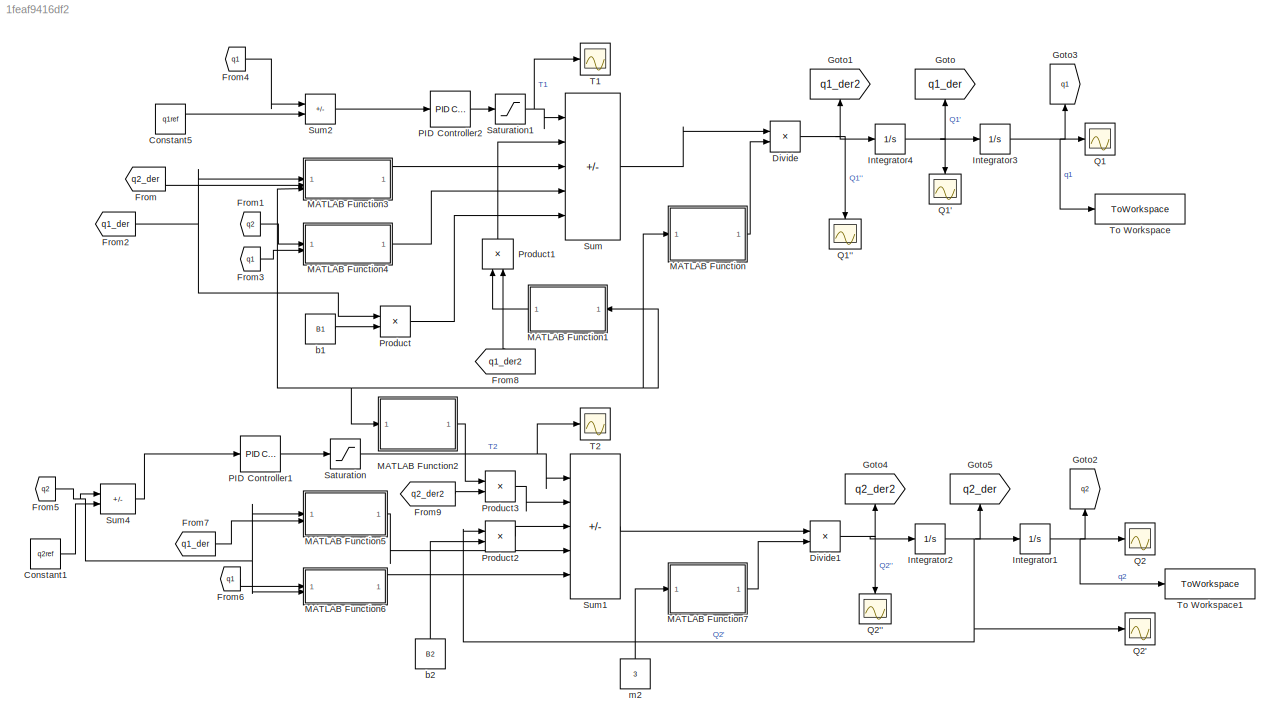
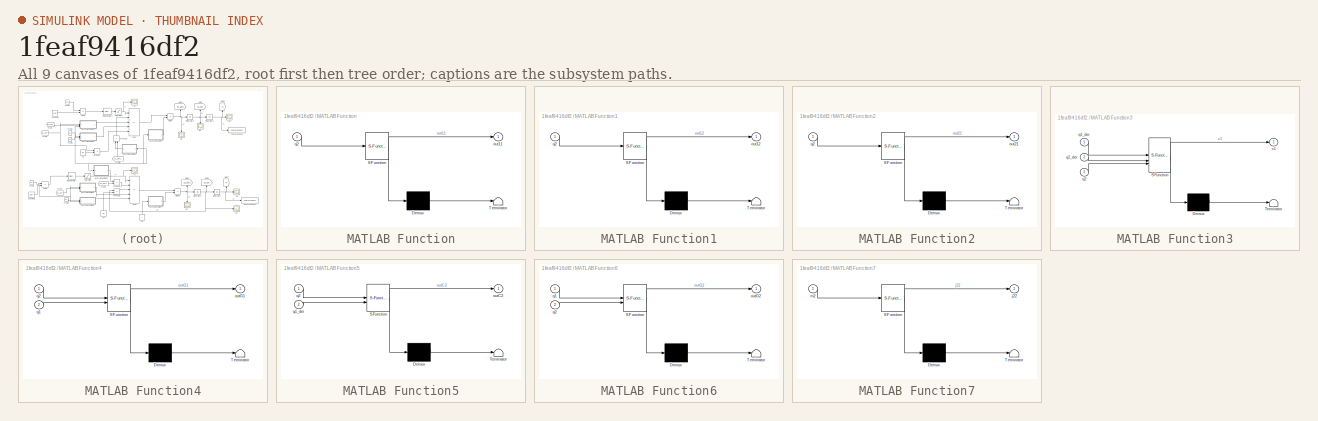
[diagram: thumbnail index - all 9 canvases of the model, root first then tree order]
MODEL slx_1feaf9416df2
KIND model
CONFIG AbsTol = auto
CONFIG EnableMultiTasking = off
CONFIG FixedStep = auto
CONFIG MaxStep = auto
CONFIG MinStep = auto
CONFIG RelTol = 1e-3
CONFIG SampleTimeConstraint = Unconstrained
CONFIG SolverName = VariableStepAuto
CONFIG StartTime = 0.0
CONFIG StopTime = 20
BLOCK [Constant] Constant1
  Value = q2ref
BLOCK [Constant] Constant5
  Value = q1ref
BLOCK [Product] Divide
  Inputs = */
BLOCK [Product] Divide1
  Inputs = */
BLOCK [From] From
  GotoTag = q2_der
BLOCK [From] From1
  GotoTag = q2
BLOCK [From] From2
  GotoTag = q1_der
BLOCK [From] From3
  GotoTag = q1
BLOCK [From] From4
  GotoTag = q1
BLOCK [From] From5
  GotoTag = q2
BLOCK [From] From6
  GotoTag = q1
BLOCK [From] From7
  GotoTag = q1_der
BLOCK [From] From8
  GotoTag = q1_der2
  NameLocation = right
BLOCK [From] From9
  GotoTag = q2_der2
BLOCK [Goto] Goto
  GotoTag = q1_der
  NameLocation = right
BLOCK [Goto] Goto1
  GotoTag = q1_der2
  NameLocation = right
BLOCK [Goto] Goto2
  GotoTag = q2
  NameLocation = right
BLOCK [Goto] Goto3
  GotoTag = q1
  NameLocation = right
BLOCK [Goto] Goto4
  GotoTag = q2_der2
  NameLocation = right
BLOCK [Goto] Goto5
  GotoTag = q2_der
  NameLocation = right
BLOCK [Integrator] Integrator1
  InitialCondition = 170
BLOCK [Integrator] Integrator2
BLOCK [Integrator] Integrator3
  InitialCondition = 170
BLOCK [Integrator] Integrator4
BLOCK [SubSystem] MATLAB Function
  ErrorFcn = Stateflow.Translate.translate
  PermitHierarchicalResolution = ExplicitOnly
  SFBlockType = MATLAB Function
  TreatAsAtomicUnit = on
BLOCK [Demux] MATLAB Function/ Demux 
  Outputs = 1
BLOCK [S-Function] MATLAB Function/ SFunction 
  EnableBusSupport = on
  FunctionName = sf_sfun
  PortCounts = [1 2]
  SFcnIsStateOwnerBlock = off
  SFunctionDeploymentMode = off
  Tag = Stateflow S-Function 2
BLOCK [Terminator] MATLAB Function/ Terminator 
BLOCK [Outport] MATLAB Function/out11
BLOCK [Inport] MATLAB Function/q2
BLOCK [SubSystem] MATLAB Function1
  ErrorFcn = Stateflow.Translate.translate
  NameLocation = top
  PermitHierarchicalResolution = ExplicitOnly
  SFBlockType = MATLAB Function
  TreatAsAtomicUnit = on
BLOCK [Demux] MATLAB Function1/ Demux 
  Outputs = 1
BLOCK [S-Function] MATLAB Function1/ SFunction 
  EnableBusSupport = on
  FunctionName = sf_sfun
  PortCounts = [1 2]
  SFcnIsStateOwnerBlock = off
  SFunctionDeploymentMode = off
  Tag = Stateflow S-Function 1
BLOCK [Terminator] MATLAB Function1/ Terminator 
BLOCK [Outport] MATLAB Function1/out12
BLOCK [Inport] MATLAB Function1/q2
BLOCK [SubSystem] MATLAB Function2
  ErrorFcn = Stateflow.Translate.translate
  PermitHierarchicalResolution = ExplicitOnly
  SFBlockType = MATLAB Function
  TreatAsAtomicUnit = on
BLOCK [Demux] MATLAB Function2/ Demux 
  Outputs = 1
BLOCK [S-Function] MATLAB Function2/ SFunction 
  EnableBusSupport = on
  FunctionName = sf_sfun
  PortCounts = [1 2]
  SFcnIsStateOwnerBlock = off
  SFunctionDeploymentMode = off
  Tag = Stateflow S-Function 3
BLOCK [Terminator] MATLAB Function2/ Terminator 
BLOCK [Outport] MATLAB Function2/out21
BLOCK [Inport] MATLAB Function2/q2
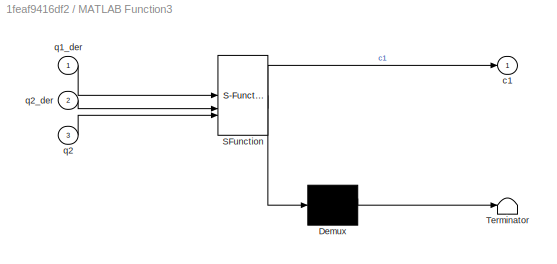
BLOCK [SubSystem] MATLAB Function3
  ErrorFcn = Stateflow.Translate.translate
  PermitHierarchicalResolution = ExplicitOnly
  SFBlockType = MATLAB Function
  TreatAsAtomicUnit = on
BLOCK [Demux] MATLAB Function3/ Demux 
  Outputs = 1
BLOCK [S-Function] MATLAB Function3/ SFunction 
  EnableBusSupport = on
  FunctionName = sf_sfun
  PortCounts = [3 2]
  SFcnIsStateOwnerBlock = off
  SFunctionDeploymentMode = off
  Tag = Stateflow S-Function 4
BLOCK [Terminator] MATLAB Function3/ Terminator 
BLOCK [Outport] MATLAB Function3/c1
BLOCK [Inport] MATLAB Function3/q1_der
BLOCK [Inport] MATLAB Function3/q2
  Port = 3
BLOCK [Inport] MATLAB Function3/q2_der
  Port = 2
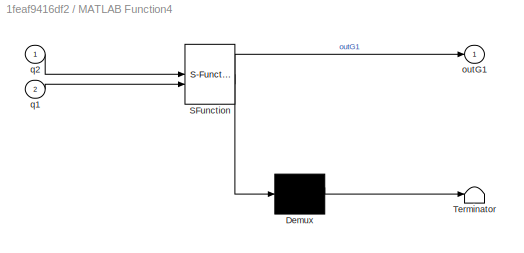
BLOCK [SubSystem] MATLAB Function4
  ErrorFcn = Stateflow.Translate.translate
  PermitHierarchicalResolution = ExplicitOnly
  SFBlockType = MATLAB Function
  TreatAsAtomicUnit = on
BLOCK [Demux] MATLAB Function4/ Demux 
  Outputs = 1
BLOCK [S-Function] MATLAB Function4/ SFunction 
  EnableBusSupport = on
  FunctionName = sf_sfun
  PortCounts = [2 2]
  SFcnIsStateOwnerBlock = off
  SFunctionDeploymentMode = off
  Tag = Stateflow S-Function 5
BLOCK [Terminator] MATLAB Function4/ Terminator 
BLOCK [Outport] MATLAB Function4/outG1
BLOCK [Inport] MATLAB Function4/q1
  Port = 2
BLOCK [Inport] MATLAB Function4/q2
BLOCK [SubSystem] MATLAB Function5
  ErrorFcn = Stateflow.Translate.translate
  PermitHierarchicalResolution = ExplicitOnly
  SFBlockType = MATLAB Function
  TreatAsAtomicUnit = on
BLOCK [Demux] MATLAB Function5/ Demux 
  Outputs = 1
BLOCK [S-Function] MATLAB Function5/ SFunction 
  EnableBusSupport = on
  FunctionName = sf_sfun
  PortCounts = [2 2]
  SFcnIsStateOwnerBlock = off
  SFunctionDeploymentMode = off
  Tag = Stateflow S-Function 6
BLOCK [Terminator] MATLAB Function5/ Terminator 
BLOCK [Outport] MATLAB Function5/outC2
BLOCK [Inport] MATLAB Function5/q1_der
  Port = 2
BLOCK [Inport] MATLAB Function5/q2
BLOCK [SubSystem] MATLAB Function6
  ErrorFcn = Stateflow.Translate.translate
  PermitHierarchicalResolution = ExplicitOnly
  SFBlockType = MATLAB Function
  TreatAsAtomicUnit = on
BLOCK [Demux] MATLAB Function6/ Demux 
  Outputs = 1
BLOCK [S-Function] MATLAB Function6/ SFunction 
  EnableBusSupport = on
  FunctionName = sf_sfun
  PortCounts = [2 2]
  SFcnIsStateOwnerBlock = off
  SFunctionDeploymentMode = off
  Tag = Stateflow S-Function 7
BLOCK [Terminator] MATLAB Function6/ Terminator 
BLOCK [Outport] MATLAB Function6/outG2
BLOCK [Inport] MATLAB Function6/q1
BLOCK [Inport] MATLAB Function6/q2
  Port = 2
BLOCK [SubSystem] MATLAB Function7
  ErrorFcn = Stateflow.Translate.translate
  PermitHierarchicalResolution = ExplicitOnly
  SFBlockType = MATLAB Function
  TreatAsAtomicUnit = on
BLOCK [Demux] MATLAB Function7/ Demux 
  Outputs = 1
BLOCK [S-Function] MATLAB Function7/ SFunction 
  EnableBusSupport = on
  FunctionName = sf_sfun
  PortCounts = [1 2]
  SFcnIsStateOwnerBlock = off
  SFunctionDeploymentMode = off
  Tag = Stateflow S-Function 8
BLOCK [Terminator] MATLAB Function7/ Terminator 
BLOCK [Outport] MATLAB Function7/j22
BLOCK [Inport] MATLAB Function7/m2
BLOCK [Reference] PID Controller1  REF=slpidlib/PID Controller
  LibrarySourceBlock = simulink/Continuous/PID Controller
  SourceBlock = slpidlib/PID Controller
  SourceType = PID 1dof
BLOCK [Reference] PID Controller2  REF=slpidlib/PID Controller
  LibrarySourceBlock = simulink/Continuous/PID Controller
  SourceBlock = slpidlib/PID Controller
  SourceType = PID 1dof
BLOCK [Product] Product
BLOCK [Product] Product1
  NameLocation = right
BLOCK [Product] Product2
BLOCK [Product] Product3
BLOCK [Scope] Q1
  Floating = off
  NumInputPorts = 1
  ScopeSpecificationString = Simulink.scopes.TimeScopeBlockCfg('CurrentConfiguration', extmgr.ConfigurationSet(extmgr.Configuration('Core','General UI',true,'FigureColor',[1 1 1]),extmgr.Configuration('Core','Source UI',true),extmgr.Configuration('Sources','WiredSimulink',true),extmgr.Configuration('Visuals','Time Domain',true,'SerializedDisplays',{struct('MinYLimReal','168.73504','MaxYLimReal','181.38462','YLabelReal','','Mi...<+1534ch>
BLOCK [Scope] Q1'
  Floating = off
  NameLocation = left
  NumInputPorts = 1
  ScopeSpecificationString = Simulink.scopes.TimeScopeBlockCfg('CurrentConfiguration', extmgr.ConfigurationSet(extmgr.Configuration('Core','General UI',true,'FigureColor',[1 1 1]),extmgr.Configuration('Core','Source UI',true),extmgr.Configuration('Sources','WiredSimulink',true,'DataLoggingVariableName','ScopeData1'),extmgr.Configuration('Visuals','Time Domain',true,'SerializedDisplays',{struct('MinYLimReal','-4.12469','MaxYLi...<+1586ch>
BLOCK [Scope] Q1''
  Floating = off
  NameLocation = left
  NumInputPorts = 1
  ScopeSpecificationString = Simulink.scopes.TimeScopeBlockCfg('CurrentConfiguration', extmgr.ConfigurationSet(extmgr.Configuration('Core','General UI',true,'FigureColor',[1 1 1]),extmgr.Configuration('Core','Source UI',true),extmgr.Configuration('Sources','WiredSimulink',true,'DataLoggingVariableName','ScopeData3'),extmgr.Configuration('Visuals','Time Domain',true,'SerializedDisplays',{struct('MinYLimReal','-18.47341','MaxYL...<+1594ch>
BLOCK [Scope] Q2
  Floating = off
  NumInputPorts = 1
  ScopeSpecificationString = Simulink.scopes.TimeScopeBlockCfg('CurrentConfiguration', extmgr.ConfigurationSet(extmgr.Configuration('Core','General UI',true,'FigureColor',[1 1 1]),extmgr.Configuration('Core','Source UI',true),extmgr.Configuration('Sources','WiredSimulink',true,'DataLoggingVariableName','ScopeData1'),extmgr.Configuration('Visuals','Time Domain',true,'SerializedDisplays',{struct('MinYLimReal','168.74207','MaxYL...<+1623ch>
BLOCK [Scope] Q2'
  Floating = off
  NumInputPorts = 1
  ScopeSpecificationString = Simulink.scopes.TimeScopeBlockCfg('CurrentConfiguration', extmgr.ConfigurationSet(extmgr.Configuration('Core','General UI',true,'FigureColor',[1 1 1]),extmgr.Configuration('Core','Source UI',true),extmgr.Configuration('Sources','WiredSimulink',true,'DataLoggingVariableName','ScopeData2'),extmgr.Configuration('Visuals','Time Domain',true,'SerializedDisplays',{struct('MinYLimReal','-2.33898','MaxYLi...<+1615ch>
BLOCK [Scope] Q2''
  Floating = off
  NameLocation = left
  NumInputPorts = 1
  ScopeSpecificationString = Simulink.scopes.TimeScopeBlockCfg('CurrentConfiguration', extmgr.ConfigurationSet(extmgr.Configuration('Core','General UI',true,'FigureColor',[1 1 1]),extmgr.Configuration('Core','Source UI',true),extmgr.Configuration('Sources','WiredSimulink',true,'DataLoggingVariableName','ScopeData4'),extmgr.Configuration('Visuals','Time Domain',true,'SerializedDisplays',{struct('MinYLimReal','-16.04197','MaxYL...<+1619ch>
BLOCK [Saturate] Saturation
  LowerLimit = -35
  UpperLimit = 35
BLOCK [Saturate] Saturation1
  LowerLimit = -70
  UpperLimit = 70
BLOCK [Sum] Sum
  IconShape = rectangular
  Inputs = |+----
BLOCK [Sum] Sum1
  IconShape = rectangular
  Inputs = |+----
BLOCK [Sum] Sum2
  IconShape = rectangular
  Inputs = |-+
BLOCK [Sum] Sum4
  IconShape = rectangular
  Inputs = |-+
BLOCK [Scope] T1
  Floating = off
  NumInputPorts = 1
  ScopeSpecificationString = Simulink.scopes.TimeScopeBlockCfg('CurrentConfiguration', extmgr.ConfigurationSet(extmgr.Configuration('Core','General UI',true,'FigureColor',[1 1 1]),extmgr.Configuration('Core','Source UI',true),extmgr.Configuration('Sources','WiredSimulink',true,'DataLoggingVariableName','ScopeData1'),extmgr.Configuration('Visuals','Time Domain',true,'SerializedDisplays',{struct('MinYLimReal','-87.5','MaxYLimRe...<+1541ch>
BLOCK [Scope] T2
  Floating = off
  NumInputPorts = 1
  ScopeSpecificationString = Simulink.scopes.TimeScopeBlockCfg('CurrentConfiguration', extmgr.ConfigurationSet(extmgr.Configuration('Core','General UI',true,'FigureColor',[1 1 1]),extmgr.Configuration('Core','Source UI',true),extmgr.Configuration('Sources','WiredSimulink',true,'DataLoggingVariableName','ScopeData2'),extmgr.Configuration('Visuals','Time Domain',true,'SerializedDisplays',{struct('MinYLimReal','-43.75','MaxYLimR...<+1549ch>
BLOCK [ToWorkspace] To Workspace
  FixptAsFi = on
  MaxDataPoints = inf
  SampleTime = -1
  VariableName = q1_out
BLOCK [ToWorkspace] To Workspace1
  FixptAsFi = on
  MaxDataPoints = inf
  SampleTime = -1
  VariableName = q2_out
BLOCK [Constant] b1
  Value = B1
BLOCK [Constant] b2
  NameLocation = right
  Value = B2
BLOCK [Constant] m2
  NameLocation = right
  Value = 3
LINE Constant1:1 -> Sum4:2
LINE Constant5:1 -> Sum2:2
NET Divide1:1 -> Goto4:1, Integrator2:1, Q2'':1
NET Divide:1 -> Goto1:1, Integrator4:1, Q1'':1
NET From1:1 -> MATLAB Function1:1, MATLAB Function2:1, MATLAB Function3:3, MATLAB Function4:1, MATLAB Function:1
NET From2:1 -> MATLAB Function3:1, Product:1
LINE From3:1 -> MATLAB Function4:2
LINE From4:1 -> Sum2:1
NET From5:1 -> MATLAB Function5:1, MATLAB Function6:2, Sum4:1
LINE From6:1 -> MATLAB Function6:1
LINE From7:1 -> MATLAB Function5:2
LINE From8:1 -> Product1:2
LINE From9:1 -> Product3:2
LINE From:1 -> MATLAB Function3:2
NET Integrator1:1 -> Goto2:1, Q2:1, To Workspace1:1
NET Integrator2:1 -> Goto5:1, Integrator1:1, Product2:1, Q2':1
NET Integrator3:1 -> Goto3:1, Q1:1, To Workspace:1
NET Integrator4:1 -> Goto:1, Integrator3:1, Q1':1
LINE MATLAB Function1:1 -> Product1:1
LINE MATLAB Function2:1 -> Product3:1
LINE MATLAB Function3:1 -> Sum:3
LINE MATLAB Function4:1 -> Sum:4
LINE MATLAB Function5:1 -> Sum1:4
LINE MATLAB Function6:1 -> Sum1:5
LINE MATLAB Function7:1 -> Divide1:2
LINE MATLAB Function:1 -> Divide:2
LINE PID Controller1:1 -> Saturation:1
LINE PID Controller2:1 -> Saturation1:1
LINE Product1:1 -> Sum:2
LINE Product2:1 -> Sum1:3
LINE Product3:1 -> Sum1:2
LINE Product:1 -> Sum:5
NET Saturation1:1 -> Sum:1, T1:1
NET Saturation:1 -> Sum1:1, T2:1
LINE Sum1:1 -> Divide1:1
LINE Sum2:1 -> PID Controller2:1
LINE Sum4:1 -> PID Controller1:1
LINE Sum:1 -> Divide:1
LINE b1:1 -> Product:2
LINE b2:1 -> Product2:2
LINE m2:1 -> MATLAB Function7:1
note: NET lines group one-source signal fan-out (src -> all destinations, sorted); 1:1 wires keep LINE
CHART MATLAB Function states=1 transitions=1
  STATE_LABEL 'eML_blk_kernel()'
  STATE_LABEL 'SCRIPT:\nfunction out11 = J11(q2)\nm1 = 3;\nm2 = 3; %kg\n\nl1 = 0.25;\nl2 = 0.25; %m\n\ng = 9.81; %m*s^-2\n\nj11 = m1*l1^2 + m2 *l1^2 + 2*m2*l1*l2* cos(q2) + m2*l2^2;\n\nout11 = 1/j11;\n'
CHART MATLAB Function2 states=1 transitions=1
  STATE_LABEL 'eML_blk_kernel()'
  STATE_LABEL 'SCRIPT:\nfunction out21 = J21(q2)\nm2 = 3; %kg\n\nl1 = 0.25;\nl2 = 0.25; %m\n\nj21 = m2*l1*l2*cos(q2) + m2*l2^2;\n\nout21 = j21;'
CHART MATLAB Function3 states=1 transitions=1
  STATE_LABEL 'eML_blk_kernel()'
  STATE_LABEL 'SCRIPT:\nfunction c1 = C1(q1_der,q2_der,q2)\n\nm2 = 3; %kg\n\nl1 = 0.25;\nl2 = 0.25; %m\n\nc1 = m2 * l2 * l1 * q2_der * sin(q2)*(2*q1_der+ q2_der);\n'
CHART MATLAB Function4 states=1 transitions=1
  STATE_LABEL 'eML_blk_kernel()'
  STATE_LABEL 'SCRIPT:\nfunction outG1 = G1(q2,q1)\nm1 = 3;\nm2 = 3; %kg\n\nl1 = 0.25;\nl2 = 0.25; %m\ng =9.81;\noutG1 = m1 * g* l1 * cos(q1) + m2 * g * (l1 * cos(q1) + l2 * cos(q1+q2));'
CHART MATLAB Function5 states=1 transitions=1
  STATE_LABEL 'eML_blk_kernel()'
  STATE_LABEL 'SCRIPT:\nfunction outC2 = C2(q2,q1_der)\n\nm2 = 3; %kg\n\nl1 = 0.25;\nl2 = 0.25; %m\n\noutC2 = m2 * l1 * l2 * q1_der * q1_der * sin(q2);\n'
CHART MATLAB Function6 states=1 transitions=1
  STATE_LABEL 'eML_blk_kernel()'
  STATE_LABEL 'SCRIPT:\nfunction outG2 = G2(q1,q2)\nm2 = 3; %kg\n\nl2 = 0.25; %m\ng = 9.81;\n\noutG2 = m2 * g * l2 * cos(q1+q2);\n'
CHART MATLAB Function7 states=1 transitions=1
  STATE_LABEL 'eML_blk_kernel()'
  STATE_LABEL 'SCRIPT:\nfunction j22 = J22(m2)\nl2 = 0.25; %m\n\nj22 = m2*l2^2;\n'
CHART MATLAB Function1 states=1 transitions=1
  STATE_LABEL 'eML_blk_kernel()'
  STATE_LABEL 'SCRIPT:\nfunction out12 = J12(q2)\nm2 = 3; %kg\n\nl1 = 0.25;\nl2 = 0.25; %m\n\nj12 = m2*l1*l2*cos(q2) + m2*l2^2;\n\nout12 = j12;'
CHART  states=0 transitions=0
CHART  states=0 transitions=0
CHART  states=0 transitions=0
CHART  states=0 transitions=0
CHART  states=0 transitions=0
CHART  states=0 transitions=0
CHART  states=0 transitions=0
CHART  states=0 transitions=0
